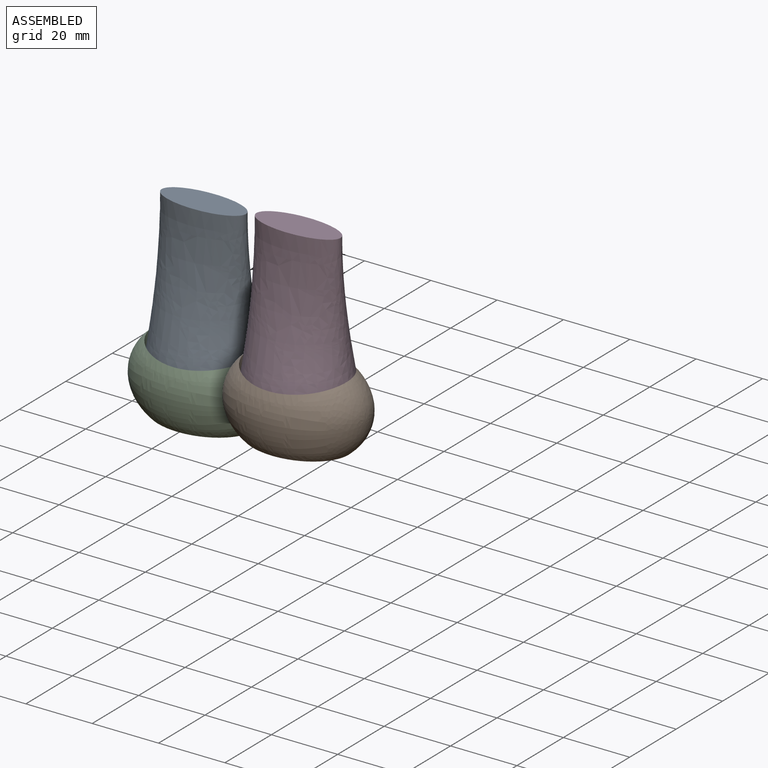
[diagram: assembled view]
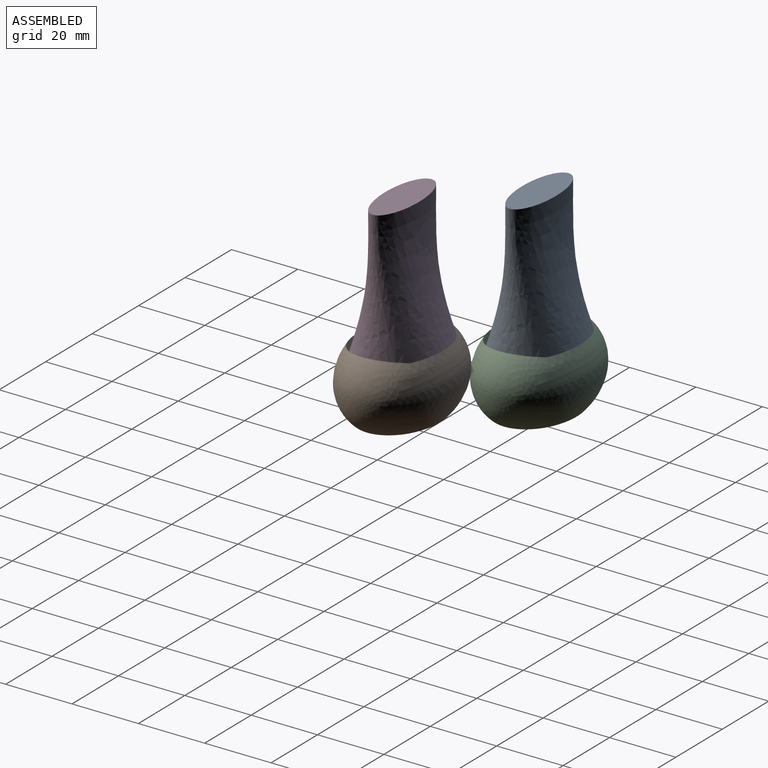
[diagram: assembled view, second angle]
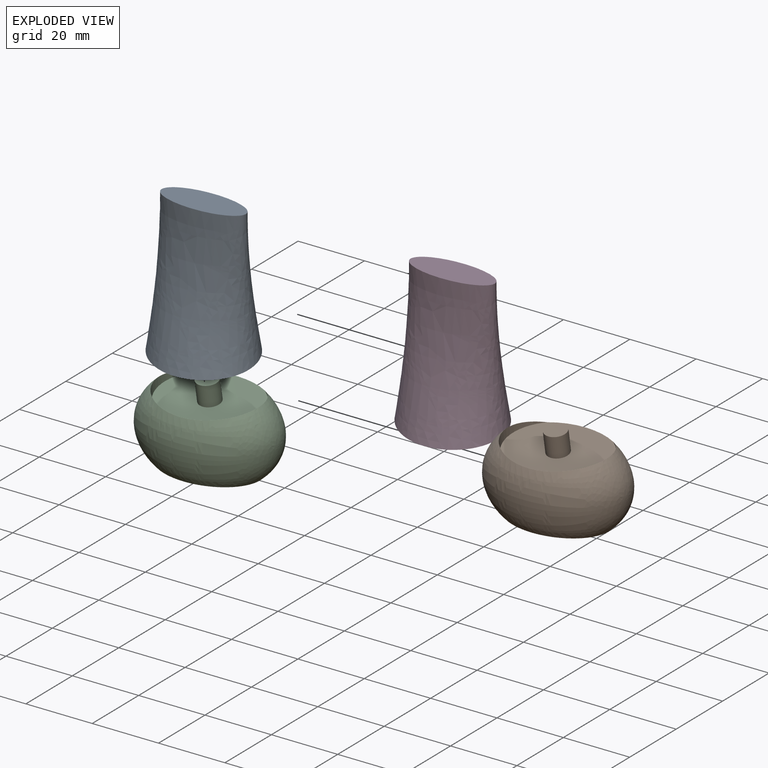
[diagram: exploded view]
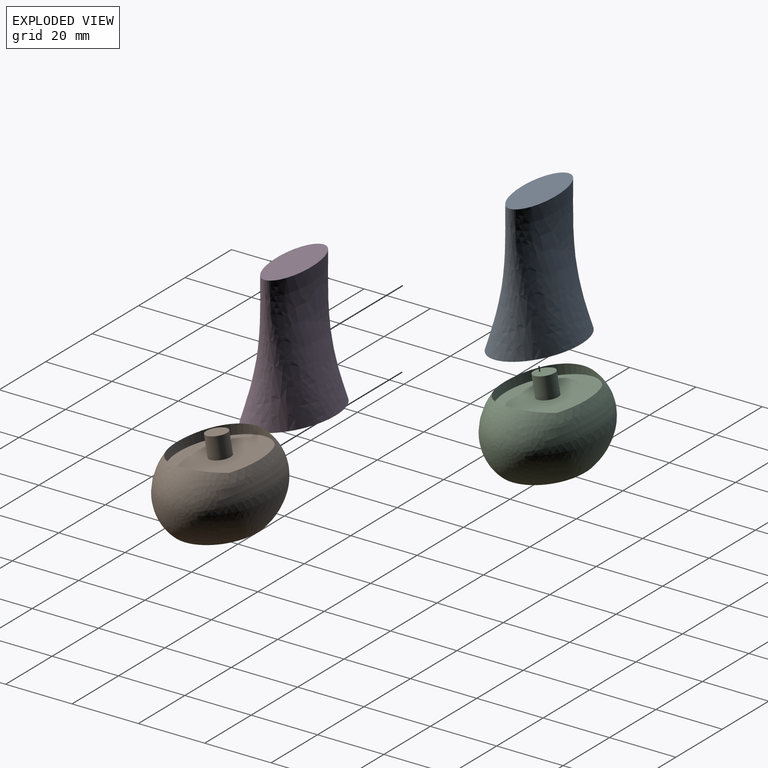
[diagram: exploded view, second angle]
ASSEMBLY  parts=4 mates=2
PART A: 5 faces, bbox 30.5x25x42.8 mm
  f0: plane 25.4x10.16mm, normal (0,0,1), area 202.7mm2, adj f2
  f1: plane 30.49x25.02mm, normal (0,0.17,-0.98), area 576.3mm2, adj f2,f3
  f2: bspline ~42.84x30.46mm, area 2776.7mm2, adj f0,f1
  f3: cylinder r=3.17mm len=7.36mm, axis (0,0.17,-0.98), area 126.7mm2, adj f1,f4
  f4: plane 6.35x6.25mm, normal (0,0.17,-0.98), area 31.7mm2, adj f3
PART B: 6 faces, bbox 40.6x30.5x30.5 mm
  f0: revolved ~40.64x30.48mm, area 2238.1mm2, adj f1,f2,f3
  f1: extruded ~30.44x22.53mm, area 154.1mm2, adj f0,f2
  f2: plane 30.48x24.25mm, normal (0,-0.18,0.98), area 565.7mm2, adj f0,f1,f4
  f3: plane 30.3x22.73mm, normal (0,0,-1), area 540.5mm2, adj f0
  f4: cylinder r=3.17mm len=7.37mm, axis (0,0.18,-0.98), area 126.7mm2, adj f2,f5
  f5: plane 6.35x6.25mm, normal (0,-0.18,0.98), area 31.7mm2, adj f4
PART C: same geometry as B
PART D: same geometry as A
PLACE A t=(-60.49,54.45,9.8)mm
PLACE B rot(axis=(-1,0,0),0.1deg) t=(-21.94,40.14,-21.58)mm
PLACE C rot(axis=(-1,0,0),0.1deg) t=(-60.49,54.45,-30.84)mm
PLACE D t=(-21.94,40.14,19.06)mm
MATE fastened A.f3 <-> C.f4  axis (0,0.17,-0.98) through (-60.49,53.35,-24.59)mm
MATE fastened B.f4 <-> D.f3  axis (0,0.17,-0.98) through (-21.94,39.04,-15.32)mm
